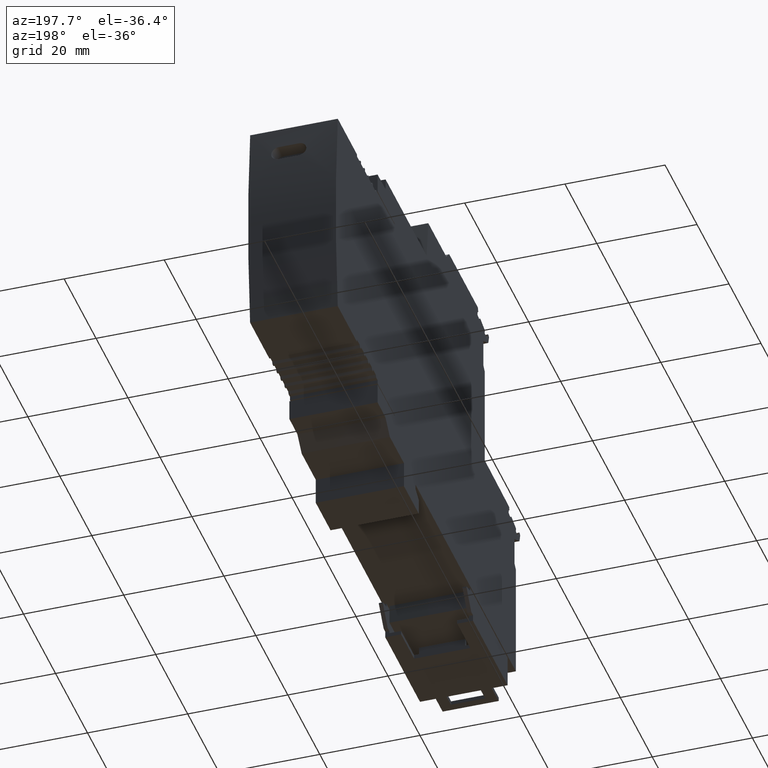
[diagram: clean part render]
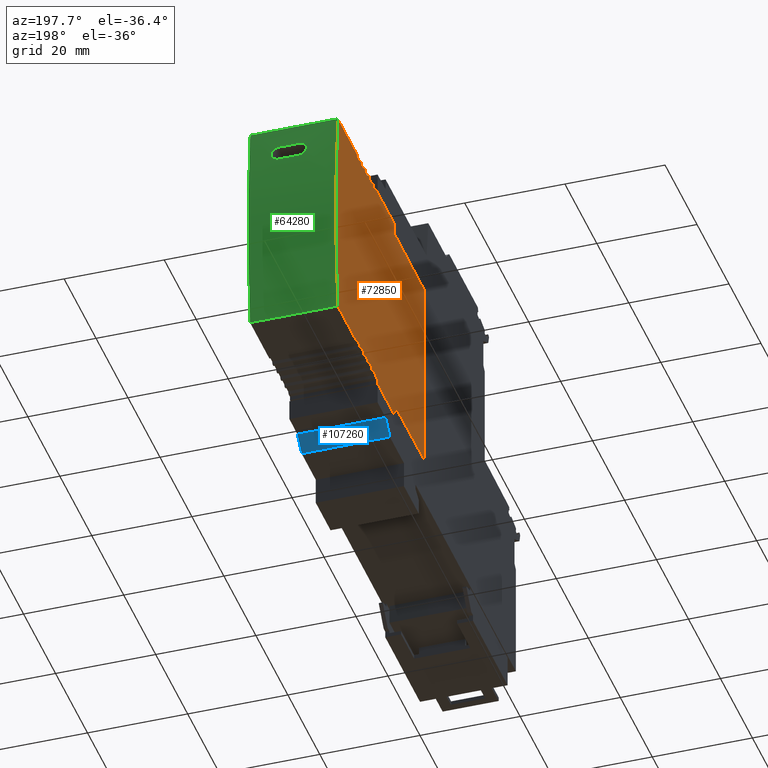
[diagram: same view with three faces highlighted in distinct colors, each labeled with its STEP entity id]
A machine part, auxiliary view with three faces highlighted in distinct colors.
Their STEP definitions:

[orange] entity #72850 — the highlighted planar face has unit normal (-1, -0, -0).
#200=CARTESIAN_POINT('',(22.5462375298785,77.8519329858409,
0.000643060632540937));
#210=VERTEX_POINT('',#200);
#240=CARTESIAN_POINT('',(22.5462375298775,0.,0.000643060632541164));
#250=DIRECTION('',(1.25205768415877E-14,1.,-7.88860905221012E-31));
#260=VECTOR('',#250,1.);
#270=LINE('',#240,#260);
#280=CARTESIAN_POINT('',(22.5462375298784,67.1645893797425,
0.000643060632541164));
#290=VERTEX_POINT('',#280);
#300=EDGE_CURVE('',#290,#210,#270,.T.);
#23570=CARTESIAN_POINT('',(20.0462375308631,48.7145893912866,
0.000643060632541007));
#23580=VERTEX_POINT('',#23570);
#23660=CARTESIAN_POINT('',(20.2072482415016,67.1645893797424,
0.000643060632541017));
#23670=VERTEX_POINT('',#23660);
#23700=CARTESIAN_POINT('',(19.6211117497649,0.,0.000643060632540981));
#23710=DIRECTION('',(-0.00872653549836144,-0.999961923064171,
-8.67361737988404E-19));
#23720=VECTOR('',#23710,1.);
#23730=LINE('',#23700,#23720);
#23740=EDGE_CURVE('',#23670,#23580,#23730,.T.);
#54240=CARTESIAN_POINT('',(-22.5537624701484,88.2023329973841,
0.000643060632540937));
#54250=VERTEX_POINT('',#54240);
#54280=CARTESIAN_POINT('',(-22.5537559129418,-0.0126563877434901,
0.000643060632540937));
#54290=DIRECTION('',(-7.43321131959716E-8,0.999999999999997,
-4.64204478795125E-24));
#54300=VECTOR('',#54290,1.);
#54310=LINE('',#54280,#54300);
#54320=CARTESIAN_POINT('',(-22.5537625073143,88.7023318989673,
0.000643060632540937));
#54330=VERTEX_POINT('',#54320);
#54340=EDGE_CURVE('',#54250,#54330,#54310,.T.);
#54580=CARTESIAN_POINT('',(-0.153765090452377,77.8519329858391,
0.000643060632540937));
#54590=DIRECTION('',(1.,8.05184934232196E-14,6.24500451351651E-17));
#54600=VECTOR('',#54590,1.);
#54610=LINE('',#54580,#54600);
#54620=CARTESIAN_POINT('',(21.746237500872,77.8519329858408,
0.000643060632540937));
#54630=VERTEX_POINT('',#54620);
#54640=EDGE_CURVE('',#54630,#210,#54610,.T.);
#54930=CARTESIAN_POINT('',(-22.5537624901478,85.7023329973841,
0.000643060632540937));
#54940=VERTEX_POINT('',#54930);
#54970=CARTESIAN_POINT('',(-22.5537624901447,-0.0126563877434901,
0.000643060632540937));
#54980=DIRECTION('',(-3.67375126084027E-14,1.,-3.25812994516751E-30));
#54990=VECTOR('',#54980,1.);
#55000=LINE('',#54970,#54990);
#55010=CARTESIAN_POINT('',(-22.5537624901479,86.2023319088775,
0.000643060632540937));
#55020=VERTEX_POINT('',#55010);
#55030=EDGE_CURVE('',#54940,#55020,#55000,.T.);
#55320=CARTESIAN_POINT('',(21.7462375008719,78.7023318209911,
0.000643060632540937));
#55330=VERTEX_POINT('',#55320);
#55360=CARTESIAN_POINT('',(21.7462375008815,-0.0126563877429146,
0.000643060632540937));
#55370=DIRECTION('',(1.21833020353416E-13,-1.,8.57234824464337E-30));
#55380=VECTOR('',#55370,1.);
#55390=LINE('',#55360,#55380);
#55400=EDGE_CURVE('',#55330,#54630,#55390,.T.);
#55630=CARTESIAN_POINT('',(21.7462375324321,80.702332997388,
0.000643060632540937));
#55640=VERTEX_POINT('',#55630);
#55670=CARTESIAN_POINT('',(-0.153765090452414,80.7023329973848,
0.000643060632540937));
#55680=DIRECTION('',(-1.,-1.4561575631084E-13,-6.24500451351651E-17));
#55690=VECTOR('',#55680,1.);
#55700=LINE('',#55670,#55690);
#55710=CARTESIAN_POINT('',(21.2462375286447,80.7023329973879,
0.000643060632540937));
#55720=VERTEX_POINT('',#55710);
#55730=EDGE_CURVE('',#55640,#55720,#55700,.T.);
#55980=CARTESIAN_POINT('',(21.2462375286547,-0.0126563877429211,
0.000643060632540937));
#55990=DIRECTION('',(1.24299474238037E-13,-1.,8.72637840106173E-30));
#56000=VECTOR('',#55990,1.);
#56010=LINE('',#55980,#56000);
#56020=CARTESIAN_POINT('',(21.2462375286449,78.9910101898221,
0.000643060632540937));
#56030=VERTEX_POINT('',#56020);
#56040=EDGE_CURVE('',#55720,#56030,#56010,.T.);
#56290=CARTESIAN_POINT('',(-0.153765090452552,91.3464465742381,
0.000643060632540937));
#56300=DIRECTION('',(0.866022966077662,-0.500004222208222,
5.408317331964E-17));
#56310=VECTOR('',#56300,1.);
#56320=LINE('',#56290,#56310);
#56330=EDGE_CURVE('',#56030,#55330,#56320,.T.);
#56560=CARTESIAN_POINT('',(21.7462375355875,81.2023318009478,
0.000643060632540937));
#56570=VERTEX_POINT('',#56560);
#56600=CARTESIAN_POINT('',(21.7462370230536,-0.0126563877429146,
0.000643060632540937));
#56610=DIRECTION('',(-6.31082862494773E-9,-1.,-3.94110568597653E-25));
#56620=VECTOR('',#56610,1.);
#56630=LINE('',#56600,#56620);
#56640=EDGE_CURVE('',#56570,#55640,#56630,.T.);
#56870=CARTESIAN_POINT('',(21.746237548209,83.202332997388,
0.000643060632540937));
#56880=VERTEX_POINT('',#56870);
#56910=CARTESIAN_POINT('',(-0.153765090452446,83.2023329973848,
0.000643060632540937));
#56920=DIRECTION('',(-1.,-1.4561575631084E-13,-6.24500451351651E-17));
#56930=VECTOR('',#56920,1.);
#56940=LINE('',#56910,#56930);
#56950=CARTESIAN_POINT('',(21.2462375286444,83.2023329973879,
0.000643060632540937));
#56960=VERTEX_POINT('',#56950);
#56970=EDGE_CURVE('',#56880,#56960,#56940,.T.);
#57220=CARTESIAN_POINT('',(21.2462375286548,-0.0126563877429211,
0.000643060632540937));
#57230=DIRECTION('',(1.24299474238037E-13,-1.,8.72637840106173E-30));
#57240=VECTOR('',#57230,1.);
#57250=LINE('',#57220,#57240);
#57260=CARTESIAN_POINT('',(21.2462375286446,81.4910101898222,
0.000643060632540937));
#57270=VERTEX_POINT('',#57260);
#57280=EDGE_CURVE('',#56960,#57270,#57250,.T.);
#57530=CARTESIAN_POINT('',(-0.153765090452585,93.846446574238,
0.000643060632540937));
#57540=DIRECTION('',(0.866022966077662,-0.500004222208222,
5.408317331964E-17));
#57550=VECTOR('',#57540,1.);
#57560=LINE('',#57530,#57550);
#57570=EDGE_CURVE('',#57270,#56570,#57560,.T.);
#57800=CARTESIAN_POINT('',(21.7462375513644,83.7023319080396,
0.000643060632540937));
#57810=VERTEX_POINT('',#57800);
#57840=CARTESIAN_POINT('',(21.7462370230535,-0.0126563877429146,
0.000643060632540937));
#57850=DIRECTION('',(-6.31082862494773E-9,-1.,-3.94110568597653E-25));
#57860=VECTOR('',#57850,1.);
#57870=LINE('',#57840,#57860);
#57880=EDGE_CURVE('',#57810,#56880,#57870,.T.);
#58110=CARTESIAN_POINT('',(21.7462375499067,85.7023329973877,
0.000643060632540937));
#58120=VERTEX_POINT('',#58110);
#58150=CARTESIAN_POINT('',(-0.153765090452479,85.7023329973849,
0.000643060632540937));
#58160=DIRECTION('',(-1.,-1.24299474238037E-13,-6.24500451351651E-17));
#58170=VECTOR('',#58160,1.);
#58180=LINE('',#58150,#58170);
#58190=CARTESIAN_POINT('',(21.2462375373119,85.7023329973876,
0.000643060632540937));
#58200=VERTEX_POINT('',#58190);
#58210=EDGE_CURVE('',#58120,#58200,#58180,.T.);
#58460=CARTESIAN_POINT('',(21.2462359505889,-0.0126563877429211,
0.000643060632533832));
#58470=DIRECTION('',(-1.85116164260511E-8,-1.,-1.15605031746113E-24));
#58480=VECTOR('',#58470,1.);
#58490=LINE('',#58460,#58480);
#58500=CARTESIAN_POINT('',(21.2462375056325,83.9910100883642,
0.000643060632540937));
#58510=VERTEX_POINT('',#58500);
#58520=EDGE_CURVE('',#58200,#58510,#58490,.T.);
#58770=CARTESIAN_POINT('',(-0.153765090452617,96.3464365750491,
0.000643060632540937));
#58780=DIRECTION('',(0.866023139286839,-0.500003922204385,
5.40831841365609E-17));
#58790=VECTOR('',#58780,1.);
#58800=LINE('',#58770,#58790);
#58810=EDGE_CURVE('',#58510,#57810,#58800,.T.);
#59040=CARTESIAN_POINT('',(21.7462375499067,86.202331908881,
0.000643060632540937));
#59050=VERTEX_POINT('',#59040);
#59080=CARTESIAN_POINT('',(21.7462375499174,-0.0126563877429146,
0.000643060632540937));
#59090=DIRECTION('',(1.24299474238037E-13,-1.,8.72637840106173E-30));
#59100=VECTOR('',#59090,1.);
#59110=LINE('',#59080,#59100);
#59120=EDGE_CURVE('',#59050,#58120,#59110,.T.);
#59350=CARTESIAN_POINT('',(21.7462375299069,88.2023329973876,
0.000643060632533832));
#59360=VERTEX_POINT('',#59350);
#59390=CARTESIAN_POINT('',(-0.153765090452511,88.2023329973849,
0.000643060632540937));
#59400=DIRECTION('',(-1.,-1.24299474238037E-13,-6.24500451351651E-17));
#59410=VECTOR('',#59400,1.);
#59420=LINE('',#59390,#59410);
#59430=CARTESIAN_POINT('',(21.2462375373116,88.2023329973876,
0.000643060632533832));
#59440=VERTEX_POINT('',#59430);
#59450=EDGE_CURVE('',#59360,#59440,#59420,.T.);
#59700=CARTESIAN_POINT('',(21.2462359043095,-0.0126563877429211,
0.000643060632533832));
#59710=DIRECTION('',(-1.85116164260511E-8,-1.,-1.15605031746113E-24));
#59720=VECTOR('',#59710,1.);
#59730=LINE('',#59700,#59720);
#59740=CARTESIAN_POINT('',(21.2462375056322,86.4910100883642,
0.000643060632533832));
#59750=VERTEX_POINT('',#59740);
#59760=EDGE_CURVE('',#59440,#59750,#59730,.T.);
#60010=CARTESIAN_POINT('',(-0.15376509045265,98.8464365750489,
0.000643060632540937));
#60020=DIRECTION('',(0.866023139286839,-0.500003922204385,
5.40831841365609E-17));
#60030=VECTOR('',#60020,1.);
#60040=LINE('',#60010,#60030);
#60050=EDGE_CURVE('',#59750,#59050,#60040,.T.);
#60280=CARTESIAN_POINT('',(21.7462375670728,88.7023318989709,
0.000643060632533832));
#60290=VERTEX_POINT('',#60280);
#60320=CARTESIAN_POINT('',(21.7462309727145,-0.0126563877429146,
0.000643060632533832));
#60330=DIRECTION('',(-7.43319521589848E-8,-0.999999999999997,
-4.6420328034429E-24));
#60340=VECTOR('',#60330,1.);
#60350=LINE('',#60320,#60340);
#60360=EDGE_CURVE('',#60290,#59360,#60350,.T.);
#60590=CARTESIAN_POINT('',(21.7462375298788,90.7023329973881,
0.000643060632540937));
#60600=VERTEX_POINT('',#60590);
#60630=CARTESIAN_POINT('',(-0.153765090452544,90.7023329973045,
0.000643060632540937));
#60640=DIRECTION('',(-1.,-3.81710911893345E-12,-6.24500451351651E-17));
#60650=VECTOR('',#60640,1.);
#60660=LINE('',#60630,#60650);
#60670=CARTESIAN_POINT('',(21.2462375373112,90.7023329973862,
0.000643060632533832));
#60680=VERTEX_POINT('',#60670);
#60690=EDGE_CURVE('',#60600,#60680,#60660,.T.);
#60940=CARTESIAN_POINT('',(21.2462358580301,-0.0126563877429211,
0.000643060632533832));
#60950=DIRECTION('',(-1.85116164260511E-8,-1.,-1.15605031746113E-24));
#60960=VECTOR('',#60950,1.);
#60970=LINE('',#60940,#60960);
#60980=CARTESIAN_POINT('',(21.2462375056319,88.9910100883627,
0.000643060632533832));
#60990=VERTEX_POINT('',#60980);
#61000=EDGE_CURVE('',#60680,#60990,#60970,.T.);
#61250=CARTESIAN_POINT('',(-0.153765090452682,101.346436574945,
0.000643060632540937));
#61260=DIRECTION('',(0.866023139288626,-0.50000392220129,
5.40831841366725E-17));
#61270=VECTOR('',#61260,1.);
#61280=LINE('',#61250,#61270);
#61290=EDGE_CURVE('',#60990,#60290,#61280,.T.);
#61510=CARTESIAN_POINT('',(21.7462375298772,102.799692134772,
0.000643060632540937));
#61520=VERTEX_POINT('',#61510);
#61550=CARTESIAN_POINT('',(21.7462375298901,-0.0126563877429146,
0.000643060632540937));
#61560=DIRECTION('',(1.24299474238037E-13,-1.,8.72637840106173E-30));
#61570=VECTOR('',#61560,1.);
#61580=LINE('',#61550,#61570);
#61590=EDGE_CURVE('',#61520,#60600,#61580,.T.);
#64130=CARTESIAN_POINT('',(-22.5537624701212,102.74397433105,
0.000643060632540937));
#64140=VERTEX_POINT('',#64130);
#64170=CARTESIAN_POINT('',(-0.153762470117484,-95.9976670026171,
0.000643060632540937));
#64180=DIRECTION('',(5.52308764794106E-16,1.78044571944912E-29,-1.));
#64190=DIRECTION('',(1.29909147206932E-14,-1.,-1.06294611315595E-29));
#64200=AXIS2_PLACEMENT_3D('',#64170,#64180,#64190);
#64210=CIRCLE('',#64200,200.);
#64220=EDGE_CURVE('',#64140,#61520,#64210,.T.);
#68250=CARTESIAN_POINT('',(-22.5537624701207,90.7023329973845,
0.000643060632540937));
#68260=VERTEX_POINT('',#68250);
#68290=CARTESIAN_POINT('',(-22.5537624701174,-0.0126563877434901,
0.000643060632540937));
#68300=DIRECTION('',(-3.67375126084027E-14,1.,-3.25812994516751E-30));
#68310=VECTOR('',#68300,1.);
#68320=LINE('',#68290,#68310);
#68330=EDGE_CURVE('',#68260,#64140,#68320,.T.);
#68560=CARTESIAN_POINT('',(-22.0537624775531,90.7023329973827,
0.000643060632533832));
#68570=VERTEX_POINT('',#68560);
#68600=CARTESIAN_POINT('',(-0.153765090452544,90.7023329973026,
0.000643060632540937));
#68610=DIRECTION('',(-1.,3.65607213208702E-12,-6.24500451351651E-17));
#68620=VECTOR('',#68610,1.);
#68630=LINE('',#68600,#68620);
#68640=EDGE_CURVE('',#68570,#68260,#68630,.T.);
#68870=CARTESIAN_POINT('',(-22.0537624458735,88.9910100883592,
0.000643060632533832));
#68880=VERTEX_POINT('',#68870);
#68910=CARTESIAN_POINT('',(-22.0537607982574,-0.0126563877434836,
0.000643060632533832));
#68920=DIRECTION('',(-1.8511777463038E-8,1.,-1.15606230196948E-24));
#68930=VECTOR('',#68920,1.);
#68940=LINE('',#68910,#68930);
#68950=EDGE_CURVE('',#68880,#68570,#68940,.T.);
#69150=CARTESIAN_POINT('',(-0.153765090452686,101.635111703135,
0.000643060632540937));
#69160=DIRECTION('',(0.866023139288545,0.500003922201429,
5.40831841366665E-17));
#69170=VECTOR('',#69160,1.);
#69180=LINE('',#69150,#69170);
#69190=EDGE_CURVE('',#54330,#68880,#69180,.T.);
#69420=CARTESIAN_POINT('',(-22.0537624775531,88.2023329973841,
0.000643060632533832));
#69430=VERTEX_POINT('',#69420);
#69460=CARTESIAN_POINT('',(-0.153765090452511,88.2023329973849,
0.000643060632540937));
#69470=DIRECTION('',(-1.,-3.67375126084027E-14,-6.24500451351651E-17));
#69480=VECTOR('',#69470,1.);
#69490=LINE('',#69460,#69480);
#69500=EDGE_CURVE('',#69430,#54250,#69490,.T.);
#69730=CARTESIAN_POINT('',(-22.0537624458734,86.4910100883607,
0.000643060632540937));
#69740=VERTEX_POINT('',#69730);
#69770=CARTESIAN_POINT('',(-22.0537608445368,-0.0126563877434836,
0.000643060632533832));
#69780=DIRECTION('',(-1.8511777463038E-8,1.,-1.15606230196948E-24));
#69790=VECTOR('',#69780,1.);
#69800=LINE('',#69770,#69790);
#69810=EDGE_CURVE('',#69740,#69430,#69800,.T.);
#70010=CARTESIAN_POINT('',(-0.153765090452653,99.1351117032406,
0.000643060632540937));
#70020=DIRECTION('',(0.866023139286758,0.500003922204524,
5.40831841365549E-17));
#70030=VECTOR('',#70020,1.);
#70040=LINE('',#70010,#70030);
#70050=EDGE_CURVE('',#55020,#69740,#70040,.T.);
#70280=CARTESIAN_POINT('',(-22.053762477553,85.7023329973841,
0.000643060632533832));
#70290=VERTEX_POINT('',#70280);
#70320=CARTESIAN_POINT('',(-0.153765090452479,85.7023329973849,
0.000643060632540937));
#70330=DIRECTION('',(-1.,-3.67375126084027E-14,-6.24500451351651E-17));
#70340=VECTOR('',#70330,1.);
#70350=LINE('',#70320,#70340);
#70360=EDGE_CURVE('',#70290,#54940,#70350,.T.);
#70590=CARTESIAN_POINT('',(-22.0537624458733,83.9910100883607,
0.000643060632540937));
#70600=VERTEX_POINT('',#70590);
#70630=CARTESIAN_POINT('',(-22.0537608908162,-0.0126563877434836,
0.000643060632533832));
#70640=DIRECTION('',(-1.8511777463038E-8,1.,-1.15606230196948E-24));
#70650=VECTOR('',#70640,1.);
#70660=LINE('',#70630,#70650);
#70670=EDGE_CURVE('',#70600,#70290,#70660,.T.);
#70900=CARTESIAN_POINT('',(-22.5537624916052,83.7023319080361,
0.000643060632540937));
#70910=VERTEX_POINT('',#70900);
#70940=CARTESIAN_POINT('',(-0.153765090452621,96.6351117032406,
0.000643060632540937));
#70950=DIRECTION('',(0.866023139286758,0.500003922204524,
5.40831841365549E-17));
#70960=VECTOR('',#70950,1.);
#70970=LINE('',#70940,#70960);
#70980=EDGE_CURVE('',#70910,#70600,#70970,.T.);
#71210=CARTESIAN_POINT('',(-22.5537624701216,67.1645893797418,
0.000643060632538347));
#71220=VERTEX_POINT('',#71210);
#71250=CARTESIAN_POINT('',(-22.5537624411088,-0.0126563877434901,
0.000643060632540937));
#71260=DIRECTION('',(-3.92039664930233E-14,1.,-3.41216010158587E-30));
#71270=VECTOR('',#71260,1.);
#71280=LINE('',#71250,#71270);
#71290=CARTESIAN_POINT('',(-22.5537624411119,78.7023318209876,
0.000643060632540937));
#71300=VERTEX_POINT('',#71290);
#71310=EDGE_CURVE('',#71220,#71300,#71280,.T.);
#71500=CARTESIAN_POINT('',(18.9212375406137,61.2645893912865,
0.000643060632540937));
#71510=DIRECTION('',(6.24500451351651E-17,-9.63870624619065E-31,-1.));
#71520=DIRECTION('',(1.07556831670163E-14,1.,-2.92177725379362E-31));
#71530=AXIS2_PLACEMENT_3D('',#71500,#71510,#71520);
#71540=PLANE('',#71530);
#71550=ORIENTED_EDGE('',*,*,#64220,.T.);
#71560=ORIENTED_EDGE('',*,*,#68330,.T.);
#71570=ORIENTED_EDGE('',*,*,#68640,.T.);
#71580=ORIENTED_EDGE('',*,*,#68950,.T.);
#71590=ORIENTED_EDGE('',*,*,#69190,.T.);
#71600=ORIENTED_EDGE('',*,*,#54340,.T.);
#71610=ORIENTED_EDGE('',*,*,#69500,.T.);
#71620=ORIENTED_EDGE('',*,*,#69810,.T.);
#71630=ORIENTED_EDGE('',*,*,#70050,.T.);
#71640=ORIENTED_EDGE('',*,*,#55030,.T.);
#71650=ORIENTED_EDGE('',*,*,#70360,.T.);
#71660=ORIENTED_EDGE('',*,*,#70670,.T.);
#71670=ORIENTED_EDGE('',*,*,#70980,.T.);
#71680=CARTESIAN_POINT('',(-22.5537619632808,-0.0126563877434901,
0.000643060632540937));
#71690=DIRECTION('',(-6.31098966193458E-9,1.,-3.94122553105999E-25));
#71700=VECTOR('',#71690,1.);
#71710=LINE('',#71680,#71700);
#71720=CARTESIAN_POINT('',(-22.5537624884497,83.2023329973844,
0.000643060632540937));
#71730=VERTEX_POINT('',#71720);
#71740=EDGE_CURVE('',#71730,#70910,#71710,.T.);
#71750=ORIENTED_EDGE('',*,*,#71740,.T.);
#71760=CARTESIAN_POINT('',(-0.153765090452446,83.2023329973847,
0.000643060632540937));
#71770=DIRECTION('',(-1.,-1.54212305355997E-14,-6.24500451351651E-17));
#71780=VECTOR('',#71770,1.);
#71790=LINE('',#71760,#71780);
#71800=CARTESIAN_POINT('',(-22.0537624688851,83.2023329973844,
0.000643060632540937));
#71810=VERTEX_POINT('',#71800);
#71820=EDGE_CURVE('',#71810,#71730,#71790,.T.);
#71830=ORIENTED_EDGE('',*,*,#71820,.T.);
#71840=CARTESIAN_POINT('',(-22.0537624688821,-0.0126563877434836,
0.000643060632540937));
#71850=DIRECTION('',(-3.67375126084027E-14,1.,-3.25812994516751E-30));
#71860=VECTOR('',#71850,1.);
#71870=LINE('',#71840,#71860);
#71880=CARTESIAN_POINT('',(-22.053762468885,81.4910101898188,
0.000643060632540937));
#71890=VERTEX_POINT('',#71880);
#71900=EDGE_CURVE('',#71890,#71810,#71870,.T.);
#71910=ORIENTED_EDGE('',*,*,#71900,.T.);
#71920=CARTESIAN_POINT('',(-0.153765090452588,94.1351219333719,
0.000643060632540937));
#71930=DIRECTION('',(0.866022966077581,0.500004222208362,
5.4083173319634E-17));
#71940=VECTOR('',#71930,1.);
#71950=LINE('',#71920,#71940);
#71960=CARTESIAN_POINT('',(-22.5537624758278,81.2023318009443,
0.000643060632540937));
#71970=VERTEX_POINT('',#71960);
#71980=EDGE_CURVE('',#71970,#71890,#71950,.T.);
#71990=ORIENTED_EDGE('',*,*,#71980,.T.);
#72000=CARTESIAN_POINT('',(-22.5537619632809,-0.0126563877434901,
0.000643060632540937));
#72010=DIRECTION('',(-6.31098966193458E-9,1.,-3.94122553105999E-25));
#72020=VECTOR('',#72010,1.);
#72030=LINE('',#72000,#72020);
#72040=CARTESIAN_POINT('',(-22.5537624726724,80.7023329973844,
0.000643060632540937));
#72050=VERTEX_POINT('',#72040);
#72060=EDGE_CURVE('',#72050,#71970,#72030,.T.);
#72070=ORIENTED_EDGE('',*,*,#72060,.T.);
#72080=CARTESIAN_POINT('',(-0.153765090452414,80.7023329973848,
0.000643060632540937));
#72090=DIRECTION('',(-1.,-1.54212305355997E-14,-6.24500451351651E-17));
#72100=VECTOR('',#72090,1.);
#72110=LINE('',#72080,#72100);
#72120=CARTESIAN_POINT('',(-22.053762468885,80.7023329973844,
0.000643060632540937));
#72130=VERTEX_POINT('',#72120);
#72140=EDGE_CURVE('',#72130,#72050,#72110,.T.);
#72150=ORIENTED_EDGE('',*,*,#72140,.T.);
#72160=CARTESIAN_POINT('',(-22.053762468882,-0.0126563877434836,
0.000643060632540937));
#72170=DIRECTION('',(-3.67375126084027E-14,1.,-3.25812994516751E-30));
#72180=VECTOR('',#72170,1.);
#72190=LINE('',#72160,#72180);
#72200=CARTESIAN_POINT('',(-22.053762468885,78.9910101898186,
0.000643060632540937));
#72210=VERTEX_POINT('',#72200);
#72220=EDGE_CURVE('',#72210,#72130,#72190,.T.);
#72230=ORIENTED_EDGE('',*,*,#72220,.T.);
#72240=CARTESIAN_POINT('',(-0.153765090452556,91.6351219333717,
0.000643060632540937));
#72250=DIRECTION('',(0.866022966077581,0.500004222208362,
5.4083173319634E-17));
#72260=VECTOR('',#72250,1.);
#72270=LINE('',#72240,#72260);
#72280=EDGE_CURVE('',#71300,#72210,#72270,.T.);
#72290=ORIENTED_EDGE('',*,*,#72280,.T.);
#72300=ORIENTED_EDGE('',*,*,#71310,.T.);
#72310=CARTESIAN_POINT('',(0.,67.1645893797436,0.000643060632539755));
#72320=DIRECTION('',(1.,8.0033202287666E-14,6.24500451351651E-17));
#72330=VECTOR('',#72320,1.);
#72340=LINE('',#72310,#72330);
#72350=CARTESIAN_POINT('',(-20.2221870237594,67.164589379742,
0.000643060632538493));
#72360=VERTEX_POINT('',#72350);
#72370=EDGE_CURVE('',#71220,#72360,#72340,.T.);
#72380=ORIENTED_EDGE('',*,*,#72370,.F.);
#72390=CARTESIAN_POINT('',(-19.636050532021,0.,0.000643060632538529));
#72400=DIRECTION('',(-0.00872653549838643,0.999961923064171,
-8.67361737988404E-19));
#72410=VECTOR('',#72400,1.);
#72420=LINE('',#72390,#72410);
#72430=CARTESIAN_POINT('',(-20.0611763131205,48.7145893912861,
0.000643060632538503));
#72440=VERTEX_POINT('',#72430);
#72450=EDGE_CURVE('',#72440,#72360,#72420,.T.);
#72460=ORIENTED_EDGE('',*,*,#72450,.T.);
#72470=CARTESIAN_POINT('',(0.,48.7145893912863,0.000643060632539755));
#72480=DIRECTION('',(1.,1.27849120179491E-14,6.24500451351651E-17));
#72490=VECTOR('',#72480,1.);
#72500=LINE('',#72470,#72490);
#72510=EDGE_CURVE('',#72440,#23580,#72500,.T.);
#72520=ORIENTED_EDGE('',*,*,#72510,.F.);
#72530=ORIENTED_EDGE('',*,*,#23740,.T.);
#72540=CARTESIAN_POINT('',(0.,67.1645893797422,0.000643060632539755));
#72550=DIRECTION('',(1.,1.25004173678889E-14,6.24500451351651E-17));
#72560=VECTOR('',#72550,1.);
#72570=LINE('',#72540,#72560);
#72580=EDGE_CURVE('',#23670,#290,#72570,.T.);
#72590=ORIENTED_EDGE('',*,*,#72580,.F.);
#72600=ORIENTED_EDGE('',*,*,#300,.F.);
#72610=ORIENTED_EDGE('',*,*,#54640,.T.);
#72620=ORIENTED_EDGE('',*,*,#55400,.T.);
#72630=ORIENTED_EDGE('',*,*,#56330,.T.);
#72640=ORIENTED_EDGE('',*,*,#56040,.T.);
#72650=ORIENTED_EDGE('',*,*,#55730,.T.);
#72660=ORIENTED_EDGE('',*,*,#56640,.T.);
#72670=ORIENTED_EDGE('',*,*,#57570,.T.);
#72680=ORIENTED_EDGE('',*,*,#57280,.T.);
#72690=ORIENTED_EDGE('',*,*,#56970,.T.);
#72700=ORIENTED_EDGE('',*,*,#57880,.T.);
#72710=ORIENTED_EDGE('',*,*,#58810,.T.);
#72720=ORIENTED_EDGE('',*,*,#58520,.T.);
#72730=ORIENTED_EDGE('',*,*,#58210,.T.);
#72740=ORIENTED_EDGE('',*,*,#59120,.T.);
#72750=ORIENTED_EDGE('',*,*,#60050,.T.);
#72760=ORIENTED_EDGE('',*,*,#59760,.T.);
#72770=ORIENTED_EDGE('',*,*,#59450,.T.);
#72780=ORIENTED_EDGE('',*,*,#60360,.T.);
#72790=ORIENTED_EDGE('',*,*,#61290,.T.);
#72800=ORIENTED_EDGE('',*,*,#61000,.T.);
#72810=ORIENTED_EDGE('',*,*,#60690,.T.);
#72820=ORIENTED_EDGE('',*,*,#61590,.T.);
#72830=EDGE_LOOP('',(#72820,#72810,#72800,#72790,#72780,#72770,#72760,
#72750,#72740,#72730,#72720,#72710,#72700,#72690,#72680,#72670,#72660,
#72650,#72640,#72630,#72620,#72610,#72600,#72590,#72530,#72520,#72460,
#72380,#72300,#72290,#72230,#72150,#72070,#71990,#71910,#71830,#71750,
#71670,#71660,#71650,#71640,#71630,#71620,#71610,#71600,#71590,#71580,
#71570,#71560,#71550));
#72840=FACE_OUTER_BOUND('',#72830,.T.);
#72850=ADVANCED_FACE('',(#72840),#71540,.T.);

[blue] entity #107260 — the highlighted planar face has unit normal (-0, -0.7071, 0.7071).
#7090=CARTESIAN_POINT('',(27.0903182029156,72.8882266625509,
17.5999999999704));
#7100=VERTEX_POINT('',#7090);
#7130=CARTESIAN_POINT('',(76.2441454417272,23.7343994237406,
17.5999999999704));
#7140=DIRECTION('',(-0.707106781186557,0.707106781186538,
-4.17487700344444E-17));
#7150=VECTOR('',#7140,1.);
#7160=LINE('',#7130,#7150);
#7170=CARTESIAN_POINT('',(29.7804584000223,70.1980864654443,
17.5999999999704));
#7180=VERTEX_POINT('',#7170);
#7190=EDGE_CURVE('',#7180,#7100,#7160,.T.);
#18100=CARTESIAN_POINT('',(29.7804584000223,70.1980864654443,
1.6642805651331E-11));
#18110=VERTEX_POINT('',#18100);
#18140=CARTESIAN_POINT('',(76.2441454417272,23.7343994237406,
1.66457073106839E-11));
#18150=DIRECTION('',(0.707106781186557,-0.707106781186538,
4.17487700344444E-17));
#18160=VECTOR('',#18150,1.);
#18170=LINE('',#18140,#18160);
#18180=CARTESIAN_POINT('',(27.0903182029156,72.8882266625509,
1.66430725755755E-11));
#18190=VERTEX_POINT('',#18180);
#18200=EDGE_CURVE('',#18190,#18110,#18170,.T.);
#23920=CARTESIAN_POINT('',(29.7804584000223,70.1980864654443,
-3.04022406479083E-11));
#23930=DIRECTION('',(6.24500451351651E-17,-9.63831640668592E-31,-1.));
#23940=VECTOR('',#23930,1.);
#23950=LINE('',#23920,#23940);
#23960=EDGE_CURVE('',#7180,#18110,#23950,.T.);
#107100=CARTESIAN_POINT('',(31.7024554679891,68.2760893974775,
-2.03288646681423));
#107110=DIRECTION('',(-0.707106781186538,-0.707106781186557,
-4.41588504004799E-17));
#107120=DIRECTION('',(-0.707106781186557,0.707106781186538,
-4.41588504004824E-17));
#107130=AXIS2_PLACEMENT_3D('',#107100,#107110,#107120);
#107140=PLANE('',#107130);
#107150=ORIENTED_EDGE('',*,*,#7190,.F.);
#107160=CARTESIAN_POINT('',(27.0903182029157,72.8882266625509,
-3.04023994782963E-11));
#107170=DIRECTION('',(-6.24500451351651E-17,9.63566825301239E-31,1.));
#107180=VECTOR('',#107170,1.);
#107190=LINE('',#107160,#107180);
#107200=EDGE_CURVE('',#18190,#7100,#107190,.T.);
#107210=ORIENTED_EDGE('',*,*,#107200,.T.);
#107220=ORIENTED_EDGE('',*,*,#18200,.F.);
#107230=ORIENTED_EDGE('',*,*,#23960,.T.);
#107240=EDGE_LOOP('',(#107230,#107220,#107210,#107150));
#107250=FACE_OUTER_BOUND('',#107240,.T.);
#107260=ADVANCED_FACE('',(#107250),#107140,.F.);

[green] entity #64280 — the highlighted cylindrical surface (partial cylindrical patch) has radius 200 mm, axis along (-1, 0, -0).
#2270=CARTESIAN_POINT('',(-22.5537624701212,102.74397433105,
17.5006430606323));
#2280=VERTEX_POINT('',#2270);
#2310=CARTESIAN_POINT('',(-0.153762470117494,-95.9976670026171,
17.5006430606323));
#2320=DIRECTION('',(5.52308764794106E-16,1.78044571944912E-29,-1.));
#2330=DIRECTION('',(1.29909147206932E-14,-1.,-1.06294611315595E-29));
#2340=AXIS2_PLACEMENT_3D('',#2310,#2320,#2330);
#2350=CIRCLE('',#2340,200.);
#2360=CARTESIAN_POINT('',(21.7462375298771,102.799692134772,
17.5006430606323));
#2370=VERTEX_POINT('',#2360);
#2380=EDGE_CURVE('',#2280,#2370,#2350,.T.);
#61470=CARTESIAN_POINT('',(21.7462375298772,102.799692134772,
0.700000000000024));
#61480=DIRECTION('',(-5.52308764794106E-16,-1.78044571944912E-29,1.));
#61490=VECTOR('',#61480,1.);
#61500=LINE('',#61470,#61490);
#61510=CARTESIAN_POINT('',(21.7462375298772,102.799692134772,
0.000643060632540937));
#61520=VERTEX_POINT('',#61510);
#61530=EDGE_CURVE('',#61520,#2370,#61500,.T.);
#61730=CARTESIAN_POINT('',(-0.153762470117484,-95.9976670026171,
0.70000000000001));
#61740=DIRECTION('',(5.52308764794106E-16,1.78044571944912E-29,-1.));
#61750=DIRECTION('',(1.29909147206932E-14,-1.,-1.06294611315595E-29));
#61760=AXIS2_PLACEMENT_3D('',#61730,#61740,#61750);
#61770=CYLINDRICAL_SURFACE('',#61760,200.);
#61780=CARTESIAN_POINT('',(-18.1439424975458,103.277046151645,
11.6001172942501));
#61790=CARTESIAN_POINT('',(-18.1439424975458,103.277046151645,
11.7471566652403));
#61800=CARTESIAN_POINT('',(-18.1222840159911,103.278365980423,
11.8933952357129));
#61810=CARTESIAN_POINT('',(-18.0796635460967,103.280963194939,
12.0341432521335));
#61820=CARTESIAN_POINT('',(-18.0490052097925,103.282831458623,
12.1353880303414));
#61830=CARTESIAN_POINT('',(-17.994073957779,103.286178869983,
12.2783169860658));
#61840=CARTESIAN_POINT('',(-17.8925066074496,103.292368201008,
12.4307764774022));
#61850=CARTESIAN_POINT('',(-17.7558888393646,103.300693441234,
12.6358490264268));
#61860=CARTESIAN_POINT('',(-17.5708027336003,103.311972254485,
12.8041814788862));
#61870=CARTESIAN_POINT('',(-17.3536155322249,103.325207250568,
12.9209134372651));
#61880=CARTESIAN_POINT('',(-17.1349757441067,103.338530764665,
13.0384261198033));
#61890=CARTESIAN_POINT('',(-16.8905832195856,103.353423604042,
13.1000026995113));
#61900=CARTESIAN_POINT('',(-16.6423080537438,103.368553044573,
13.1001171344932));
#61910=CARTESIAN_POINT('',(-16.5243488657151,103.375741264604,
13.1001715042386));
#61920=CARTESIAN_POINT('',(-16.240463862629,103.39304070435,
13.0880463187257));
#61930=CARTESIAN_POINT('',(-15.9295362481341,103.411988072031,
12.9207881587371));
#61940=CARTESIAN_POINT('',(-15.825746011074,103.418312861761,
12.8649559866618));
#61950=CARTESIAN_POINT('',(-15.582302460704,103.433147872366,
12.7200777993061));
#61960=CARTESIAN_POINT('',(-15.388274836103,103.444971565637,
12.4263630976814));
#61970=CARTESIAN_POINT('',(-15.2878787279753,103.451089523276,
12.2743857026912));
#61980=CARTESIAN_POINT('',(-15.2335673448141,103.454399160948,
12.1320251311804));
#61990=CARTESIAN_POINT('',(-15.2032221547308,103.456248342066,
12.0309032549976));
#62000=CARTESIAN_POINT('',(-15.1612825615298,103.458804065185,
11.8911443561673));
#62010=CARTESIAN_POINT('',(-15.1399772409264,103.460102372972,
11.7460198854895));
#62020=CARTESIAN_POINT('',(-15.1399772409264,103.460102372972,
11.6001172942501));
#62030=B_SPLINE_CURVE_WITH_KNOTS('',3,(#61780,#61790,#61800,#61810,
#61820,#61830,#61840,#61850,#61860,#61870,#61880,#61890,#61900,#61910,
#61920,#61930,#61940,#61950,#61960,#61970,#61980,#61990,#62000,#62010,
#62020),.UNSPECIFIED.,.F.,.F.,(4,3,3,3,3,3,3,3,4),(0.,0.439969879592551,
0.879878003451412,1.61456901837024,2.35497398152368,3.09687298444902,
3.8363222827369,4.2742544220507,4.71083845677835),.UNSPECIFIED.);
#62040=DIRECTION('',(0.0608253635122498,-0.998148423408865,
3.35943813895854E-17));
#62050=VECTOR('',#62040,1.);
#62060=SURFACE_OF_LINEAR_EXTRUSION('',#62030,#62050);
#62070=CARTESIAN_POINT('',(-15.1387624373255,103.440167361835,
11.6001172942501));
#62080=CARTESIAN_POINT('',(-15.1387624373255,103.440167361835,
11.6565030396872));
#62090=CARTESIAN_POINT('',(-15.1419513009071,103.439927840288,
11.7131141960622));
#62100=CARTESIAN_POINT('',(-15.1483480995092,103.439446899993,
11.7694250516337));
#62110=CARTESIAN_POINT('',(-15.1547448447338,103.438965963712,
11.8257354373246));
#62120=CARTESIAN_POINT('',(-15.1643476116182,103.438243745697,
11.8817252045594));
#62130=CARTESIAN_POINT('',(-15.1770513180529,103.437286784806,
11.9368674289106));
#62140=CARTESIAN_POINT('',(-15.2024198454808,103.435375792234,
12.0469830898852));
#62150=CARTESIAN_POINT('',(-15.240172707502,103.432528063508,
12.1540373303636));
#62160=CARTESIAN_POINT('',(-15.2898090935989,103.428760766151,
12.2561089806615));
#62170=CARTESIAN_POINT('',(-15.3394199427322,103.424995406996,
12.3581281170635));
#62180=CARTESIAN_POINT('',(-15.4002288338974,103.420362003077,
12.4537854242548));
#62190=CARTESIAN_POINT('',(-15.4709366840772,103.414930829363,
12.5415094769341));
#62200=CARTESIAN_POINT('',(-15.5062637148418,103.412217308299,
12.5853381366927));
#62210=CARTESIAN_POINT('',(-15.5442492112434,103.409290140232,
12.6273869847165));
#62220=CARTESIAN_POINT('',(-15.5846143161812,103.406166489382,
12.6672538291387));
#62230=CARTESIAN_POINT('',(-15.6249766872794,103.403043050089,
12.7071179734673));
#62240=CARTESIAN_POINT('',(-15.6676989019475,103.399724617186,
12.7447844719144));
#62250=CARTESIAN_POINT('',(-15.7123781801561,103.396238313436,
12.7798896890224));
#62260=CARTESIAN_POINT('',(-15.7452638701145,103.393672258011,
12.8057284968998));
#62270=CARTESIAN_POINT('',(-15.7792050829916,103.391015633199,
12.8301798221005));
#62280=CARTESIAN_POINT('',(-15.8140276911558,103.38828057947,
12.8531078281301));
#62290=CARTESIAN_POINT('',(-15.8488586578241,103.385544869243,
12.876041337591));
#62300=CARTESIAN_POINT('',(-15.8845619349737,103.382731433466,
12.8974066562174));
#62310=CARTESIAN_POINT('',(-15.9209494921502,103.379853830129,
12.9172164190465));
#62320=CARTESIAN_POINT('',(-15.9572958777976,103.376979482722,
12.9370037676689));
#62330=CARTESIAN_POINT('',(-15.9945299603733,103.37402493298,
12.9553734834503));
#62340=CARTESIAN_POINT('',(-16.0326185473234,103.370991340863,
12.9722037095745));
#62350=CARTESIAN_POINT('',(-16.070695415197,103.36795868212,
12.9890287573835));
#62360=CARTESIAN_POINT('',(-16.1095746056059,103.364851110953,
13.0043060951303));
#62370=CARTESIAN_POINT('',(-16.1490644509621,103.361682701734,
13.017941548381));
#62380=CARTESIAN_POINT('',(-16.228056501267,103.35534489164,
13.0452167225275));
#62390=CARTESIAN_POINT('',(-16.309439880323,103.348767319808,
13.0658792739609));
#62400=CARTESIAN_POINT('',(-16.3915671761937,103.342077399565,
13.0796284987473));
#62410=CARTESIAN_POINT('',(-16.4326260818973,103.338732825736,
13.0865023172265));
#62420=CARTESIAN_POINT('',(-16.4738595092888,103.335361224941,
13.0916541141214));
#62430=CARTESIAN_POINT('',(-16.5150698783376,103.331978609604,
13.0950675601077));
#62440=CARTESIAN_POINT('',(-16.5356824735676,103.330286693653,
13.096774896928));
#62450=CARTESIAN_POINT('',(-16.5563357963348,103.328588213097,
13.0980505468628));
#62460=CARTESIAN_POINT('',(-16.5770032178959,103.326885331862,
13.0988894333907));
#62470=CARTESIAN_POINT('',(-16.5976717006096,103.325182363193,
13.0997283629905));
#62480=CARTESIAN_POINT('',(-16.6183490241241,103.323475429088,
13.1001216542624));
#62490=CARTESIAN_POINT('',(-16.639031111796,103.321764859435,
13.1001172771139));
#62500=CARTESIAN_POINT('',(-16.7219680765608,103.314905326816,
13.100099724369));
#62510=CARTESIAN_POINT('',(-16.8046304472408,103.30801631627,
13.0932479804899));
#62520=CARTESIAN_POINT('',(-16.8868493472466,103.301113233395,
13.0794595657631));
#62530=CARTESIAN_POINT('',(-16.9690642318153,103.294210487656,
13.06567182444));
#62540=CARTESIAN_POINT('',(-17.0505366095525,103.287318196744,
13.0449180840227));
#62550=CARTESIAN_POINT('',(-17.1296367005309,103.280579913882,
13.0175245099686));
#62560=CARTESIAN_POINT('',(-17.2087399587543,103.273841361212,
12.990129839049));
#62570=CARTESIAN_POINT('',(-17.2853417622192,103.267268000815,
12.956143353779));
#62580=CARTESIAN_POINT('',(-17.3580845702124,103.260987266341,
12.916390703394));
#62590=CARTESIAN_POINT('',(-17.430927945027,103.254697848761,
12.8765830950303));
#62600=CARTESIAN_POINT('',(-17.500267232918,103.248670771009,
12.830884022711));
#62610=CARTESIAN_POINT('',(-17.5659236443273,103.242932884161,
12.7792579328981));
#62620=CARTESIAN_POINT('',(-17.6103544139828,103.239049962092,
12.7443217118124));
#62630=CARTESIAN_POINT('',(-17.6529634104936,103.235311211453,
12.7067415478227));
#62640=CARTESIAN_POINT('',(-17.6933239678701,103.23175798894,
12.6668413366899));
#62650=CARTESIAN_POINT('',(-17.7336844811927,103.228204770305,
12.6269411691086));
#62660=CARTESIAN_POINT('',(-17.7717819964694,103.224838396808,
12.5847351259017));
#62670=CARTESIAN_POINT('',(-17.8072751319821,103.221693228002,
12.5406379933649));
#62680=CARTESIAN_POINT('',(-17.8427839457139,103.218546669896,
12.4965213820051));
#62690=CARTESIAN_POINT('',(-17.8756183214845,103.215627580652,
12.4506164595363));
#62700=CARTESIAN_POINT('',(-17.905723797847,103.212944835756,
12.4031176742675));
#62710=CARTESIAN_POINT('',(-17.9358767074465,103.210257864012,
12.355544051414));
#62720=CARTESIAN_POINT('',(-17.9634504390421,103.207793840325,
12.3060935762343));
#62730=CARTESIAN_POINT('',(-17.9881548423716,103.20558208914,
12.2552052711698));
#62740=CARTESIAN_POINT('',(-18.0376469836937,103.201151125931,
12.1532570009644));
#62750=CARTESIAN_POINT('',(-18.0752764492052,103.197764627069,
12.0463969096492));
#62760=CARTESIAN_POINT('',(-18.1005794611437,103.195484887428,
11.9364074084668));
#62770=CARTESIAN_POINT('',(-18.1132486626642,103.194343423282,
11.881335737197));
#62780=CARTESIAN_POINT('',(-18.1228249331288,103.193479475388,
11.8254201411519));
#62790=CARTESIAN_POINT('',(-18.1292038230808,103.192903828851,
11.7691867831774));
#62800=CARTESIAN_POINT('',(-18.135582768636,103.192328177297,
11.7129529350296));
#62810=CARTESIAN_POINT('',(-18.1387624373255,103.19204100505,
11.6564216630604));
#62820=CARTESIAN_POINT('',(-18.1387624373255,103.19204100505,
11.6001172942501));
#62830=B_SPLINE_CURVE_WITH_KNOTS('',3,(#62070,#62080,#62090,#62100,
#62110,#62120,#62130,#62140,#62150,#62160,#62170,#62180,#62190,#62200,
#62210,#62220,#62230,#62240,#62250,#62260,#62270,#62280,#62290,#62300,
#62310,#62320,#62330,#62340,#62350,#62360,#62370,#62380,#62390,#62400,
#62410,#62420,#62430,#62440,#62450,#62460,#62470,#62480,#62490,#62500,
#62510,#62520,#62530,#62540,#62550,#62560,#62570,#62580,#62590,#62600,
#62610,#62620,#62630,#62640,#62650,#62660,#62670,#62680,#62690,#62700,
#62710,#62720,#62730,#62740,#62750,#62760,#62770,#62780,#62790,#62800,
#62810,#62820),.UNSPECIFIED.,.F.,.F.,(4,3,3,3,3,3,3,3,3,3,3,3,3,3,3,3,3,
3,3,3,3,3,3,3,3,4),(0.,0.169671370739553,0.339661264388803,
0.679064685994595,1.01809375311729,1.18792271971451,1.3586274787417,
1.48419034118794,1.60917952499761,1.73400309092498,1.85949165490126,
2.11077306124336,2.23568189614298,2.29794629100549,2.36020157138287,
2.61001994843476,2.86171384372015,3.11260285323857,3.36254607086505,
3.5329110238223,3.70333574347577,3.87277897134228,4.04236037581671,
4.38127576450742,4.55103950853839,4.72047196893718),.UNSPECIFIED.);
#62840=SURFACE_CURVE('',#62830,(#61770,#62060),.CURVE_3D.);
#62850=CARTESIAN_POINT('',(-15.1387624373255,103.440167361835,
11.6001172942501));
#62860=VERTEX_POINT('',#62850);
#62870=CARTESIAN_POINT('',(-18.1387624373255,103.19204100505,
11.6001172942501));
#62880=VERTEX_POINT('',#62870);
#62890=EDGE_CURVE('',#62860,#62880,#62840,.T.);
#62900=ORIENTED_EDGE('',*,*,#62890,.T.);
#62910=CARTESIAN_POINT('',(-15.1387624373255,103.440167361835,
0.700000000000003));
#62920=DIRECTION('',(5.52308764794106E-16,1.78044571944912E-29,-1.));
#62930=VECTOR('',#62920,1.);
#62940=LINE('',#62910,#62930);
#62950=CARTESIAN_POINT('',(-15.1387624373255,103.440167361835,
7.6001172942502));
#62960=VERTEX_POINT('',#62950);
#62970=EDGE_CURVE('',#62860,#62960,#62940,.T.);
#62980=ORIENTED_EDGE('',*,*,#62970,.F.);
#62990=CARTESIAN_POINT('',(-15.1399772409264,103.460102372972,
7.6001172942502));
#63000=CARTESIAN_POINT('',(-15.1399772409264,103.460102372972,
7.4941933382622));
#63010=CARTESIAN_POINT('',(-15.1511523851783,103.459421379849,
7.3412233216911));
#63020=CARTESIAN_POINT('',(-15.2043350880392,103.456180521919,
7.16563986262675));
#63030=CARTESIAN_POINT('',(-15.2350241300178,103.454310387086,
7.06431954876347));
#63040=CARTESIAN_POINT('',(-15.290030942949,103.45095837118,
6.92121408395236));
#63050=CARTESIAN_POINT('',(-15.3917662143324,103.444758807349,
6.76861043537156));
#63060=CARTESIAN_POINT('',(-15.5283055607824,103.436438345996,
6.56380042051831));
#63070=CARTESIAN_POINT('',(-15.713191760186,103.425171714678,
6.39569691223439));
#63080=CARTESIAN_POINT('',(-15.9301440465788,103.41195103389,
6.27911965505802));
#63090=CARTESIAN_POINT('',(-16.1488076319664,103.39862606963,
6.16162284756781));
#63100=CARTESIAN_POINT('',(-16.3932308328077,103.383731360894,
6.10012936867742));
#63110=CARTESIAN_POINT('',(-16.6415417234402,103.368599743359,
6.10011729602776));
#63120=CARTESIAN_POINT('',(-16.8903109939975,103.353440192978,
6.10010520109208));
#63130=CARTESIAN_POINT('',(-17.1352044762468,103.338516826141,
6.16180200455433));
#63140=CARTESIAN_POINT('',(-17.3542231541151,103.325170223186,
6.27964791048635));
#63150=CARTESIAN_POINT('',(-17.4579285709318,103.318850602248,
6.33544798614094));
#63160=CARTESIAN_POINT('',(-17.7017958430759,103.303989770804,
6.48053418475223));
#63170=CARTESIAN_POINT('',(-17.8959984357954,103.292155415291,
6.7747235827792));
#63180=CARTESIAN_POINT('',(-17.9962262360162,103.286047714032,
6.92655449193251));
#63190=CARTESIAN_POINT('',(-18.0504619714351,103.282742686197,
7.06873752918209));
#63200=CARTESIAN_POINT('',(-18.080776288143,103.280895386447,
7.16978312992673));
#63210=CARTESIAN_POINT('',(-18.1110470019235,103.27905074378,
7.2706833906318));
#63220=CARTESIAN_POINT('',(-18.1439424975458,103.277046151645,
7.41882243801095));
#63230=CARTESIAN_POINT('',(-18.1439424975458,103.277046151645,
7.60011729425021));
#63240=B_SPLINE_CURVE_WITH_KNOTS('',3,(#62990,#63000,#63010,#63020,
#63030,#63040,#63050,#63060,#63070,#63080,#63090,#63100,#63110,#63120,
#63130,#63140,#63150,#63160,#63170,#63180,#63190,#63200,#63210,#63220,
#63230),.UNSPECIFIED.,.F.,.F.,(4,3,3,3,3,3,3,3,4),(0.,0.440429854591862,
0.880816933089621,1.6146820416064,2.35513325907616,3.09698585736443,
3.83726507108253,4.27471457446176,4.7108383745688),.UNSPECIFIED.);
#63250=DIRECTION('',(0.0608253635122498,-0.998148423408865,
3.35943813895854E-17));
#63260=VECTOR('',#63250,1.);
#63270=SURFACE_OF_LINEAR_EXTRUSION('',#63240,#63260);
#63280=CARTESIAN_POINT('',(-18.1387624373255,103.19204100505,
7.6001172942502));
#63290=CARTESIAN_POINT('',(-18.1387624373255,103.19204100505,
7.54539889404814));
#63300=CARTESIAN_POINT('',(-18.1357607218605,103.192312101414,
7.49046876202239));
#63310=CARTESIAN_POINT('',(-18.1297362358884,103.192855781908,
7.43580646845869));
#63320=CARTESIAN_POINT('',(-18.1237118849923,103.193399450212,
7.38114540048836));
#63330=CARTESIAN_POINT('',(-18.114668880595,103.194215325403,
7.32676971174612));
#63340=CARTESIAN_POINT('',(-18.102697986067,103.195294002144,
7.27316600810094));
#63350=CARTESIAN_POINT('',(-18.0787817882902,103.197449049639,
7.16607319436457));
#63360=CARTESIAN_POINT('',(-18.0432357117639,103.200648646824,
7.06198802117183));
#63370=CARTESIAN_POINT('',(-17.9964078893814,103.20484303288,
6.96230946005027));
#63380=CARTESIAN_POINT('',(-17.9495974164206,103.209035864942,
6.8626678292258));
#63390=CARTESIAN_POINT('',(-17.8921189007714,103.214168026924,
6.76882803305485));
#63400=CARTESIAN_POINT('',(-17.8252643599758,103.220098322056,
6.68237904442376));
#63410=CARTESIAN_POINT('',(-17.7918536137165,103.223062003858,
6.63917591731901));
#63420=CARTESIAN_POINT('',(-17.7560202615133,103.226232144609,
6.59772290084826));
#63430=CARTESIAN_POINT('',(-17.7178176993236,103.229600116885,
6.55816790276197));
#63440=CARTESIAN_POINT('',(-17.6796329041001,103.232966522809,
6.51863130062292));
#63450=CARTESIAN_POINT('',(-17.6391584861218,103.236523684661,
6.48108437041132));
#63460=CARTESIAN_POINT('',(-17.5967454779095,103.24023688063,
6.44586902560357));
#63470=CARTESIAN_POINT('',(-17.5297966753395,103.246098149007,
6.39028171250454));
#63480=CARTESIAN_POINT('',(-17.4580742829039,103.252342927627,
6.34056197580113));
#63490=CARTESIAN_POINT('',(-17.3830910934443,103.258826580878,
6.29779224848702));
#63500=CARTESIAN_POINT('',(-17.3456350629444,103.262065332332,
6.27642767034234));
#63510=CARTESIAN_POINT('',(-17.3073733480055,103.26536316006,
6.25667613342827));
#63520=CARTESIAN_POINT('',(-17.2680748768732,103.268738371806,
6.2385128331267));
#63530=CARTESIAN_POINT('',(-17.2288076495676,103.272110900127,
6.22036397336161));
#63540=CARTESIAN_POINT('',(-17.1886451076502,103.27554859354,
6.20386667045191));
#63550=CARTESIAN_POINT('',(-17.1477993734759,103.279031860364,
6.18913100342862));
#63560=CARTESIAN_POINT('',(-17.0660894910849,103.285999964335,
6.15965302626003));
#63570=CARTESIAN_POINT('',(-16.9817110970724,103.293144280523,
6.13728693133714));
#63580=CARTESIAN_POINT('',(-16.896472566715,103.300305035789,
6.12242108525605));
#63590=CARTESIAN_POINT('',(-16.8112633871317,103.307463325343,
6.1075603580348));
#63600=CARTESIAN_POINT('',(-16.7254016586392,103.3146212321,
6.10014739726924));
#63610=CARTESIAN_POINT('',(-16.6392853296965,103.321743833474,
6.10011738536194));
#63620=CARTESIAN_POINT('',(-16.5531765519597,103.328865810294,
6.10008737608627));
#63630=CARTESIAN_POINT('',(-16.4673300783948,103.335909806658,
6.10742992604345));
#63640=CARTESIAN_POINT('',(-16.3819871353941,103.342857538213,
6.12225835699168));
#63650=CARTESIAN_POINT('',(-16.296653992126,103.349804471976,
6.13708508522552));
#63660=CARTESIAN_POINT('',(-16.2121868608156,103.356624994329,
6.15942648673432));
#63670=CARTESIAN_POINT('',(-16.1304032471185,103.363179076754,
6.18888667979168));
#63680=CARTESIAN_POINT('',(-16.0485995705291,103.369734767005,
6.21835409992855));
#63690=CARTESIAN_POINT('',(-15.9697038616244,103.376006327487,
6.25484217951151));
#63700=CARTESIAN_POINT('',(-15.8949748208235,103.381906258362,
6.29751213028911));
#63710=CARTESIAN_POINT('',(-15.8201307004412,103.387815274882,
6.34024779099721));
#63720=CARTESIAN_POINT('',(-15.7490337642158,103.393386020327,
6.3893553341172));
#63730=CARTESIAN_POINT('',(-15.6820626218774,103.398601504085,
6.44481399370324));
#63740=CARTESIAN_POINT('',(-15.6396727707414,103.401902680866,
6.47991693867287));
#63750=CARTESIAN_POINT('',(-15.5991035129297,103.40504842771,
6.51745663911135));
#63760=CARTESIAN_POINT('',(-15.5607351877534,103.408012935739,
6.55711312293314));
#63770=CARTESIAN_POINT('',(-15.5223667028188,103.410977456111,
6.59676977187687));
#63780=CARTESIAN_POINT('',(-15.4862114678333,103.413759817624,
6.63853034677162));
#63790=CARTESIAN_POINT('',(-15.452564944195,103.416341138384,
6.68200158726315));
#63800=CARTESIAN_POINT('',(-15.4188849923532,103.418925023715,
6.72551601692597));
#63810=CARTESIAN_POINT('',(-15.3878567447316,103.421296975378,
6.77051704664407));
#63820=CARTESIAN_POINT('',(-15.3592617969853,103.423477288104,
6.8172510038232));
#63830=CARTESIAN_POINT('',(-15.3306557408141,103.425658447827,
6.86400311598067));
#63840=CARTESIAN_POINT('',(-15.3045334171144,103.427644053141,
6.91247157713411));
#63850=CARTESIAN_POINT('',(-15.2811490621531,103.42941785522,
6.96224118802791));
#63860=CARTESIAN_POINT('',(-15.2343014617161,103.432971443557,
7.06194831481897));
#63870=CARTESIAN_POINT('',(-15.1987623841506,103.435651561247,
7.16600614881596));
#63880=CARTESIAN_POINT('',(-15.1748341372748,103.437453791014,
7.27313697034813));
#63890=CARTESIAN_POINT('',(-15.1628590096475,103.438355734711,
7.32675164873726));
#63900=CARTESIAN_POINT('',(-15.1538146914029,103.439035913047,
7.3811344194315));
#63910=CARTESIAN_POINT('',(-15.1477891523438,103.439488923385,
7.43580018810668));
#63920=CARTESIAN_POINT('',(-15.141763375545,103.439941951597,
7.49046811363825));
#63930=CARTESIAN_POINT('',(-15.1387624373255,103.440167361835,
7.54539781470275));
#63940=CARTESIAN_POINT('',(-15.1387624373255,103.440167361835,
7.6001172942502));
#63950=B_SPLINE_CURVE_WITH_KNOTS('',3,(#63280,#63290,#63300,#63310,
#63320,#63330,#63340,#63350,#63360,#63370,#63380,#63390,#63400,#63410,
#63420,#63430,#63440,#63450,#63460,#63470,#63480,#63490,#63500,#63510,
#63520,#63530,#63540,#63550,#63560,#63570,#63580,#63590,#63600,#63610,
#63620,#63630,#63640,#63650,#63660,#63670,#63680,#63690,#63700,#63710,
#63720,#63730,#63740,#63750,#63760,#63770,#63780,#63790,#63800,#63810,
#63820,#63830,#63840,#63850,#63860,#63870,#63880,#63890,#63900,#63910,
#63920,#63930,#63940),.UNSPECIFIED.,.F.,.F.,(4,3,3,3,3,3,3,3,3,3,3,3,3,3
,3,3,3,3,3,3,3,3,4),(0.,0.164643893460815,0.329618274486912,
0.658947734354291,0.98806450127396,1.15265693444738,1.31821714310853,
1.57916299171495,1.7089752339259,1.83944101893981,2.10066499189899,
2.36002479074397,2.61945456292233,2.88083069061748,3.14110949113422,
3.40087027874431,3.56654409702111,3.73205856634189,3.89660629421996,
4.0614894892222,4.39082268575808,4.55581500173783,4.7204643925127),
.UNSPECIFIED.);
#63960=SURFACE_CURVE('',#63950,(#61770,#63270),.CURVE_3D.);
#63970=CARTESIAN_POINT('',(-18.1387624373287,103.192041005049,
7.60011729425021));
#63980=VERTEX_POINT('',#63970);
#63990=EDGE_CURVE('',#63980,#62960,#63960,.T.);
#64000=ORIENTED_EDGE('',*,*,#63990,.T.);
#64010=CARTESIAN_POINT('',(-18.1387624373287,103.192041005049,
0.700000000000003));
#64020=DIRECTION('',(5.52308764794106E-16,1.78044571944912E-29,-1.));
#64030=VECTOR('',#64020,1.);
#64040=LINE('',#64010,#64030);
#64050=EDGE_CURVE('',#62880,#63980,#64040,.T.);
#64060=ORIENTED_EDGE('',*,*,#64050,.T.);
#64070=EDGE_LOOP('',(#64060,#64000,#62980,#62900));
#64080=FACE_BOUND('',#64070,.T.);
#64090=CARTESIAN_POINT('',(-22.5537624701212,102.74397433105,
0.699999999999996));
#64100=DIRECTION('',(-5.52308764794106E-16,-1.78044571944912E-29,1.));
#64110=VECTOR('',#64100,1.);
#64120=LINE('',#64090,#64110);
#64130=CARTESIAN_POINT('',(-22.5537624701212,102.74397433105,
0.000643060632540937));
#64140=VERTEX_POINT('',#64130);
#64150=EDGE_CURVE('',#64140,#2280,#64120,.T.);
#64160=ORIENTED_EDGE('',*,*,#64150,.T.);
#64170=CARTESIAN_POINT('',(-0.153762470117484,-95.9976670026171,
0.000643060632540937));
#64180=DIRECTION('',(5.52308764794106E-16,1.78044571944912E-29,-1.));
#64190=DIRECTION('',(1.29909147206932E-14,-1.,-1.06294611315595E-29));
#64200=AXIS2_PLACEMENT_3D('',#64170,#64180,#64190);
#64210=CIRCLE('',#64200,200.);
#64220=EDGE_CURVE('',#64140,#61520,#64210,.T.);
#64230=ORIENTED_EDGE('',*,*,#64220,.F.);
#64240=ORIENTED_EDGE('',*,*,#61530,.F.);
#64250=ORIENTED_EDGE('',*,*,#2380,.T.);
#64260=EDGE_LOOP('',(#64250,#64240,#64230,#64160));
#64270=FACE_OUTER_BOUND('',#64260,.T.);
#64280=ADVANCED_FACE('',(#64080,#64270),#61770,.T.);